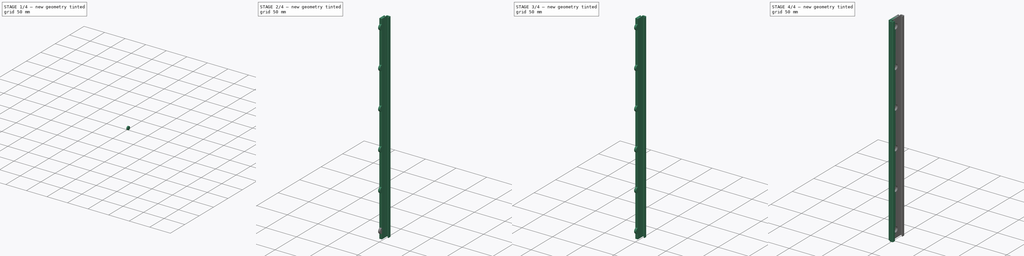
[diagram: build sequence overview — one tinted view per stage of 4, left to right]
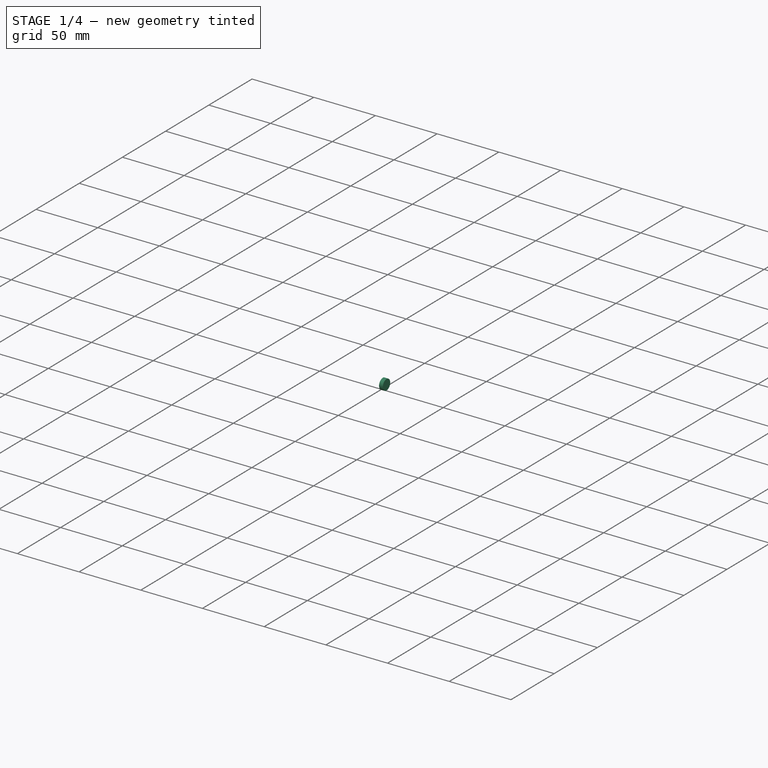
[diagram: stage 1 of 4 — iso view after this stage's code; geometry added in this stage tinted green]
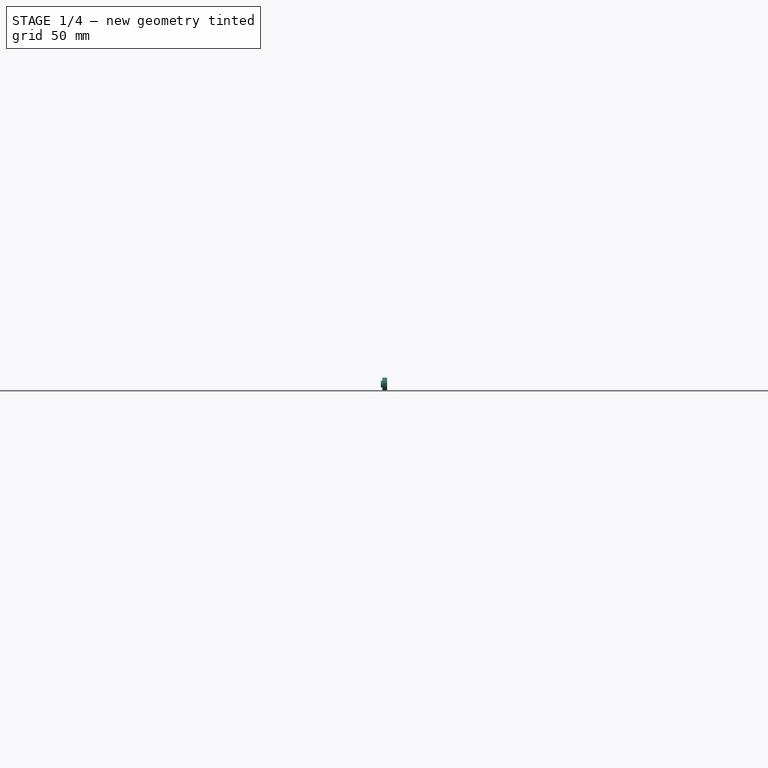
[diagram: stage 1 of 4 — front view after this stage's code; geometry added in this stage tinted green]
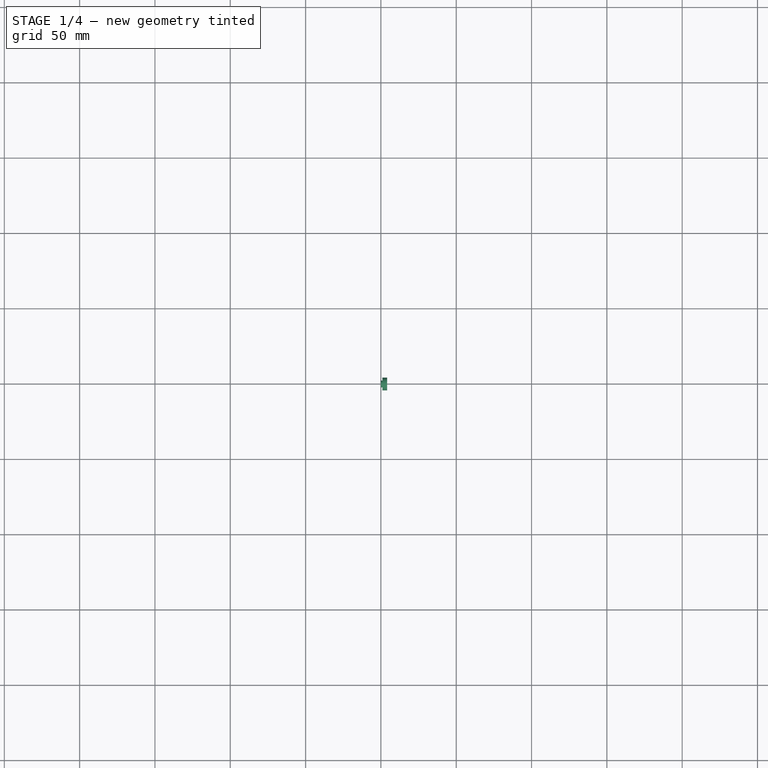
[diagram: stage 1 of 4 — top view after this stage's code; geometry added in this stage tinted green]
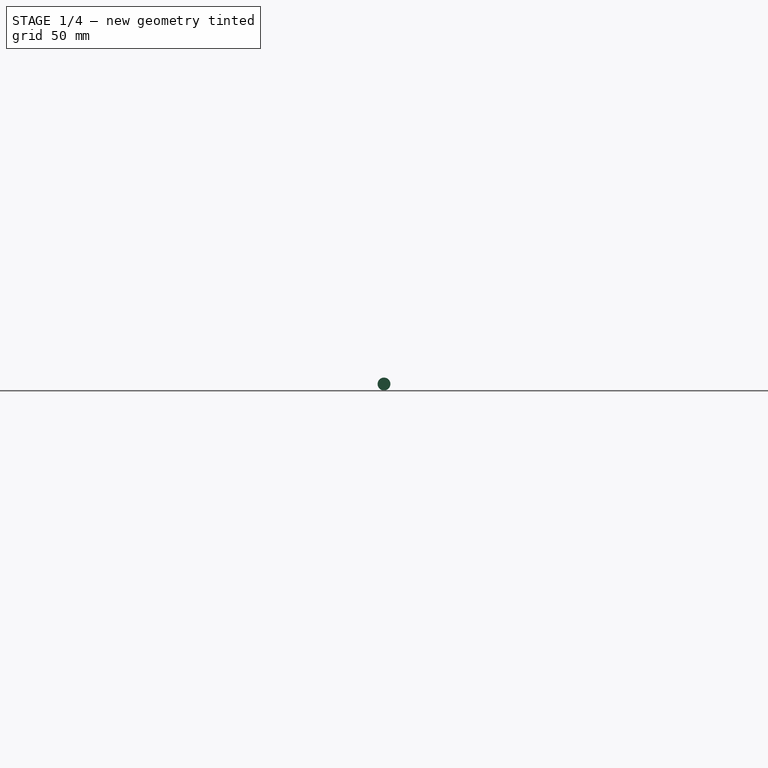
[diagram: stage 1 of 4 — right view after this stage's code; geometry added in this stage tinted green]
FCSTD DOCUMENT  (FreeCAD 0.14R3310 (Git))
Label: 17. PERFIL GUIA NS_01_27_1
License: CC-BY 3.0
LicenseURL: http://creativecommons.org/licenses/by/3.0/
objects: Sketcher::SketchObject×3, PartDesign::Pad×3, PartDesign::Fillet×3, Part::Fuse×2, Part::Mirroring×1, Part::FeaturePython×1, Part::Cut×1
note: 17 computed .brp shape members not serialized (recipe doc carries the construction recipe); baked Part::Feature solids carry a one-line shape summary decoded from their .brp

FEATURE [Sketcher::SketchObject] Sketch001
  Placement = pos=(0,0,0) rot=(0.57735,0.57735,0.57735;2.0944rad)
  sketch-geometry (1):
    g0: Circle CenterX=0 CenterY=12.5 CenterZ=0 NormalX=0 NormalY=0 NormalZ=1 Radius=2.25
  constraints (3):
    c: PointOnObject(g0,g-2)
    c: DistanceY(g-1,g0) = 12.5
    c: Radius(g0) = 2.25
FEATURE [PartDesign::Pad] Pad001
  Length = 1
  Length2 = 100
  Placement = pos=(0,0,0) rot=(0.57735,0.57735,0.57735;2.0944rad)
  Sketch = -> Sketch001
  Type = 0
FEATURE [Sketcher::SketchObject] Sketch002
  Placement = pos=(1,0,0) rot=(0.57735,0.57735,0.57735;2.0944rad)
  Support = -> Pad001 [Face3]
  sketch-geometry (1):
    g0: Circle CenterX=0 CenterY=12.5 CenterZ=0 NormalX=0 NormalY=0 NormalZ=1 Radius=4.25
  constraints (3):
    c: PointOnObject(g0,g-2)
    c: DistanceY(g-1,g0) = 12.5
    c: Radius(g0) = 4.25
FEATURE [PartDesign::Pad] Pad002
  Length = 3.1
  Length2 = 100
  Placement = pos=(0,0,0) rot=(0.57735,0.57735,0.57735;2.0944rad)
  Sketch = -> Sketch002
  Type = 0
FEATURE [Part::Fuse] Fusion001
  Base = -> Pad001
  Tool = -> Pad002
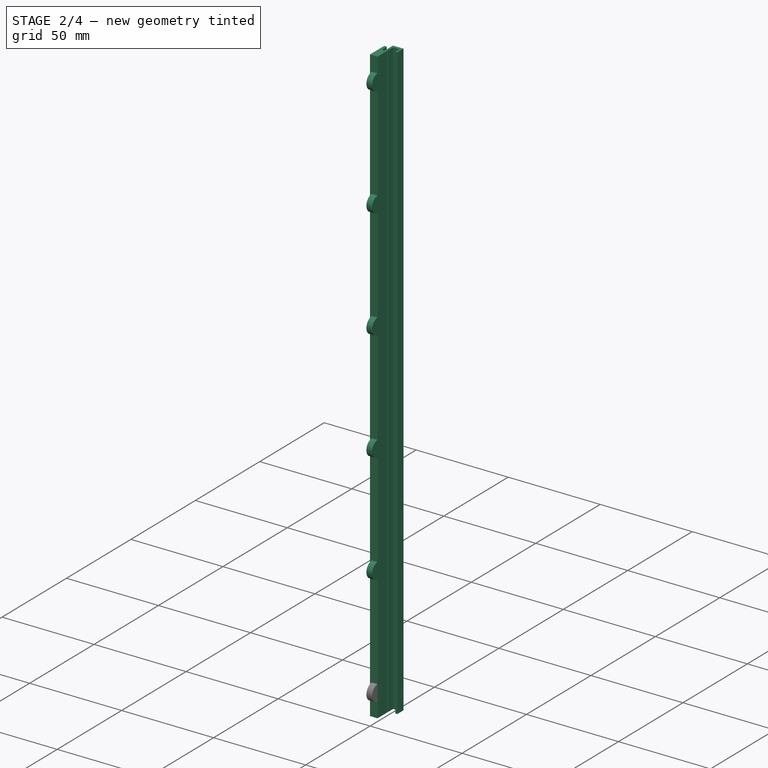
[diagram: stage 2 of 4 — iso view after this stage's code; geometry added in this stage tinted green]
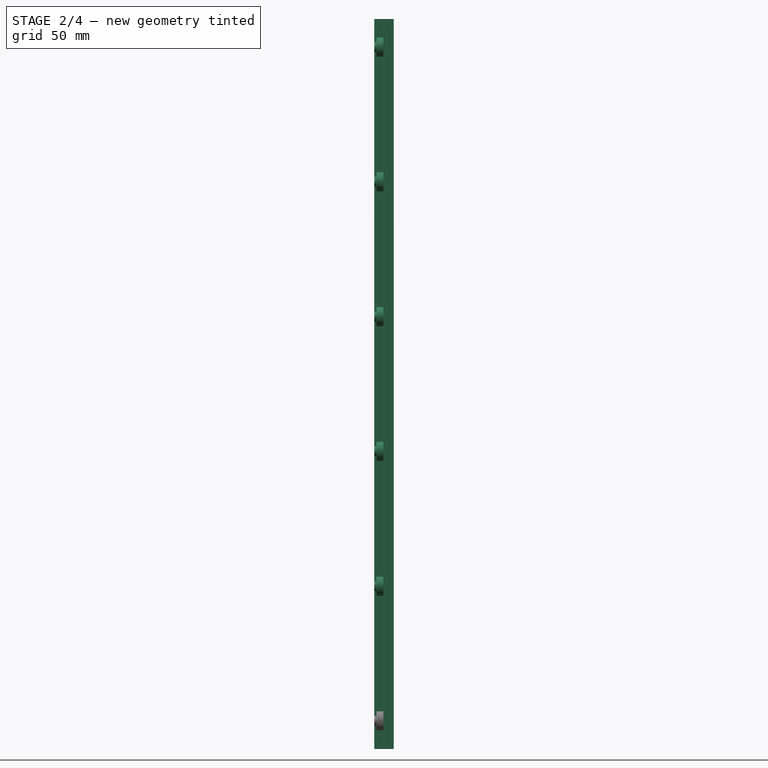
[diagram: stage 2 of 4 — front view after this stage's code; geometry added in this stage tinted green]
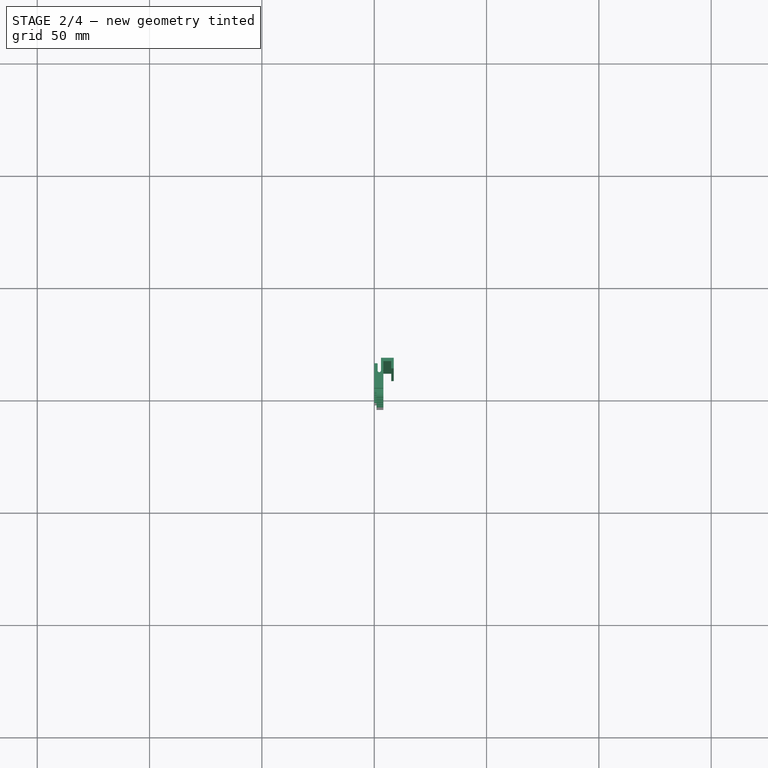
[diagram: stage 2 of 4 — top view after this stage's code; geometry added in this stage tinted green]
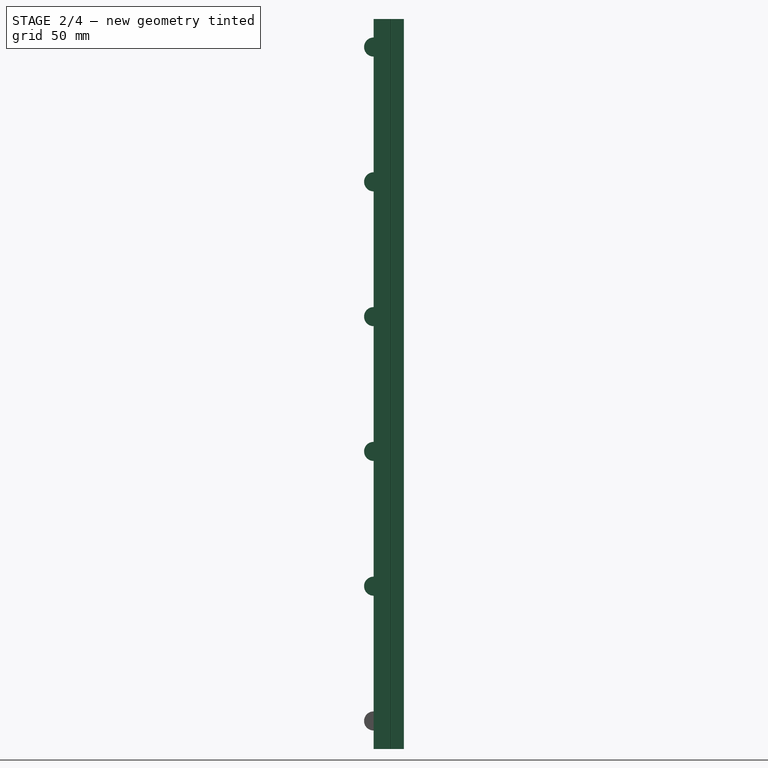
[diagram: stage 2 of 4 — right view after this stage's code; geometry added in this stage tinted green]
FEATURE [Sketcher::SketchObject] Sketch
  sketch-geometry (14):
    g0: LineSegment StartX=0 StartY=0 StartZ=0 EndX=0 EndY=11 EndZ=0
    g1: LineSegment StartX=0 StartY=11 StartZ=0 EndX=1.5 EndY=11 EndZ=0
    g2: ArcOfCircle CenterX=2.25 CenterY=7.8 CenterZ=0 NormalX=0 NormalY=0 NormalZ=1 Radius=0.75 StartAngle=3.14159 EndAngle=6.28319
    g3: LineSegment StartX=1.5 StartY=11 StartZ=0 EndX=1.5 EndY=7.8 EndZ=0
    g4: LineSegment StartX=3 StartY=7.8 StartZ=0 EndX=3 EndY=13.5 EndZ=0
    g5: LineSegment StartX=3 StartY=13.5 StartZ=0 EndX=8.7 EndY=13.5 EndZ=0
    g6: LineSegment StartX=8.7 StartY=13.5 StartZ=0 EndX=8.7 EndY=8.75 EndZ=0
    g7: LineSegment StartX=8.7 StartY=8.75 StartZ=0 EndX=7.6 EndY=8.75 EndZ=0
    g8: LineSegment StartX=7.6 StartY=8.75 StartZ=0 EndX=7.6 EndY=12 EndZ=0
    g9: LineSegment StartX=7.6 StartY=12 StartZ=0 EndX=4.1 EndY=12 EndZ=0
    g10: ArcOfCircle CenterX=4.1 CenterY=7.75 CenterZ=0 NormalX=0 NormalY=0 NormalZ=1 Radius=0.2 StartAngle=1.5708 EndAngle=4.71239
    g11: LineSegment StartX=4.1 StartY=12 StartZ=0 EndX=4.1 EndY=7.95 EndZ=0
    g12: LineSegment StartX=4.1 StartY=7.55 StartZ=0 EndX=4.1 EndY=0 EndZ=0
    g13: LineSegment StartX=4.1 StartY=0 StartZ=0 EndX=0 EndY=0 EndZ=0
  constraints (43):
    c: Coincident(g0,g-1)
    c: PointOnObject(g0,g-2)
    c: Distance(g0) = 11
    c: Horizontal(g1)
    c: Distance(g1) = 1.5
    c: Coincident(g1,g0)
    c: Coincident(g3,g1)
    c: Vertical(g3)
    c: Coincident(g2,g3)
    c: Radius(g2) = 0.75
    c: DistanceY(g-1,g2) = 7.8
    c: Coincident(g4,g2)
    c: Vertical(g4)
    c: Tangent(g2,g3)
    c: Tangent(g4,g2)
    c: Coincident(g5,g4)
    c: Horizontal(g5)
    c: DistanceY(g-1,g4) = 13.5
    c: Distance(g5) = 5.7
    c: Coincident(g6,g5)
    c: Vertical(g6)
    c: Distance(g6) = 4.75
    c: Coincident(g7,g6)
    c: Horizontal(g7)
    c: Distance(g7) = 1.1
    c: Coincident(g8,g7)
    c: Vertical(g8)
    c: Distance(g8) = 3.25
    c: Coincident(g9,g8)
    c: Horizontal(g9)
    c: Distance(g9) = 3.5
    c: DistanceY(g-1,g10) = 7.75
    c: Coincident(g11,g9)
    c: Coincident(g11,g10)
    c: Vertical(g11)
    c: Coincident(g12,g10)
    c: PointOnObject(g12,g-1)
    c: Vertical(g12)
    c: Coincident(g13,g12)
    c: Coincident(g13,g-1)
    c: Radius(g10) = 0.2
    c: Perpendicular(g10,g11)
    c: Perpendicular(g10,g12)
FEATURE [PartDesign::Pad] Pad
  Length = 325
  Length2 = 100
  Sketch = -> Sketch
  Type = 0
FEATURE [PartDesign::Fillet] Fillet
  Base = -> Pad [Edge5]
  Radius = 0.2
FEATURE [Part::FeaturePython] Array  # Draft array (typed FeaturePython)
  Angle = 360
  ArrayType = 0
  Axis = (0,0,1)
  Base = -> Fusion001
  Center = (0,0,0)
  IntervalX = (1,0,0)
  IntervalY = (0,1,0)
  IntervalZ = (0,0,60)
  NumberPolar = 1
  NumberX = 1
  NumberY = 1
  NumberZ = 6
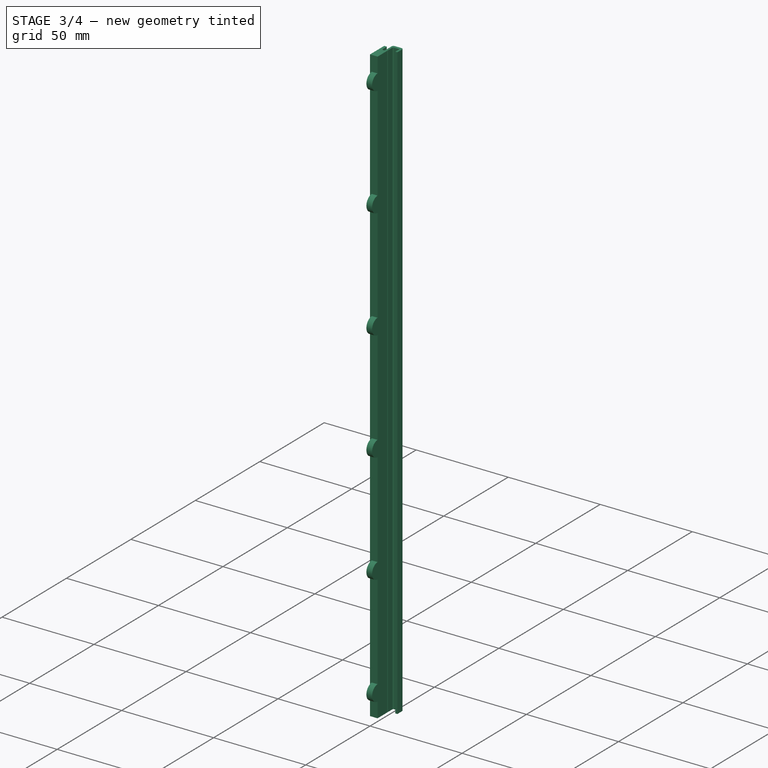
[diagram: stage 3 of 4 — iso view after this stage's code; geometry added in this stage tinted green]
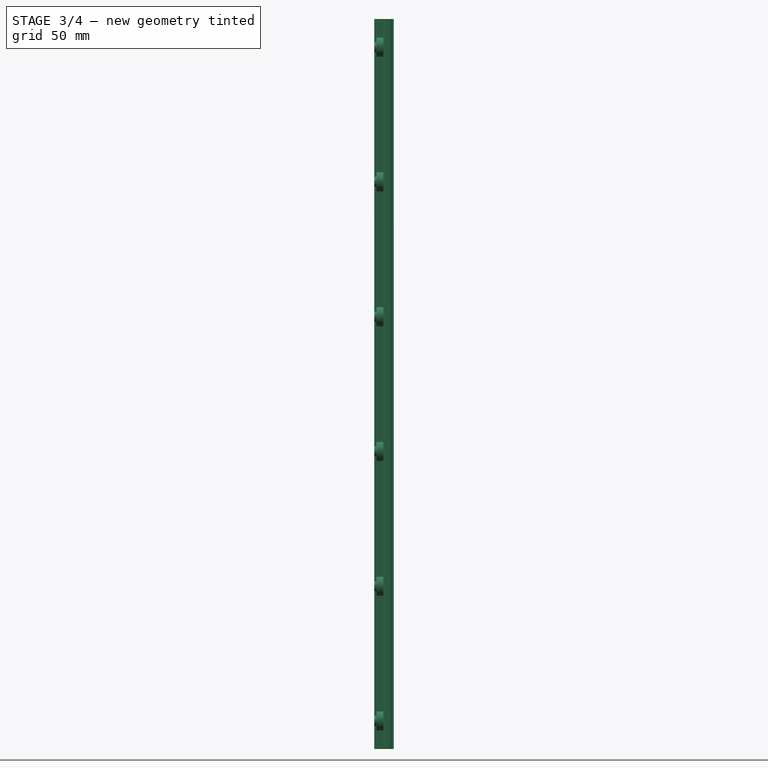
[diagram: stage 3 of 4 — front view after this stage's code; geometry added in this stage tinted green]
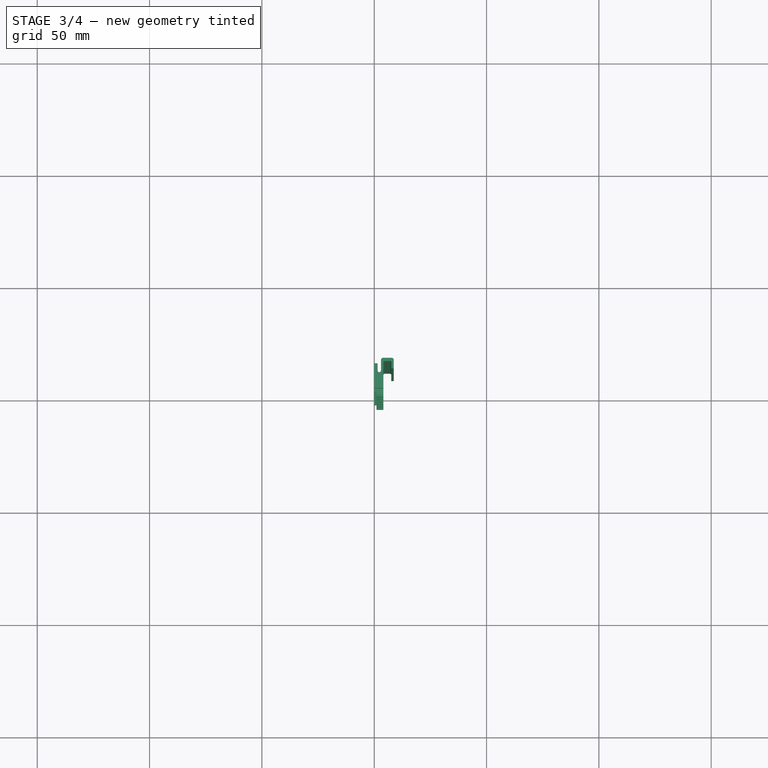
[diagram: stage 3 of 4 — top view after this stage's code; geometry added in this stage tinted green]
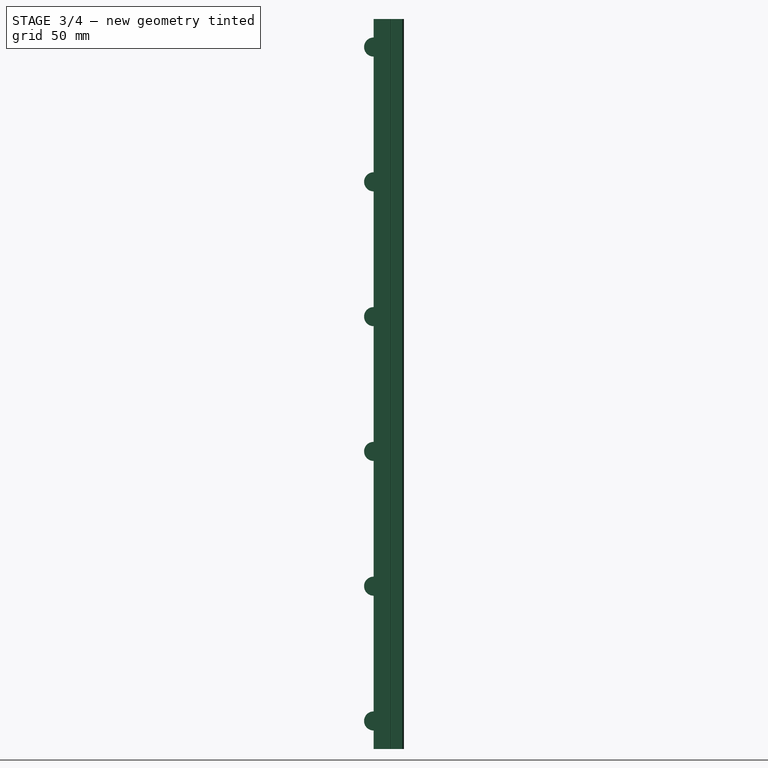
[diagram: stage 3 of 4 — right view after this stage's code; geometry added in this stage tinted green]
FEATURE [PartDesign::Fillet] Fillet001
  Base = -> Fillet [Edge39,Edge41]
  Radius = 1
FEATURE [PartDesign::Fillet] Fillet002
  Base = -> Fillet001 [Edge45,Edge41]
  Radius = 0.5
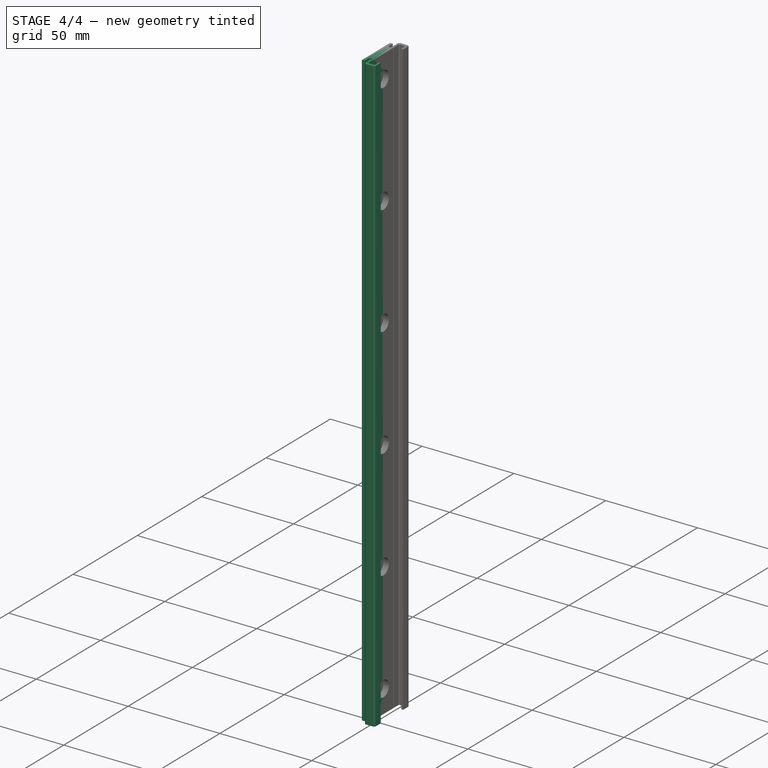
[diagram: stage 4 of 4 — iso view after this stage's code; geometry added in this stage tinted green]
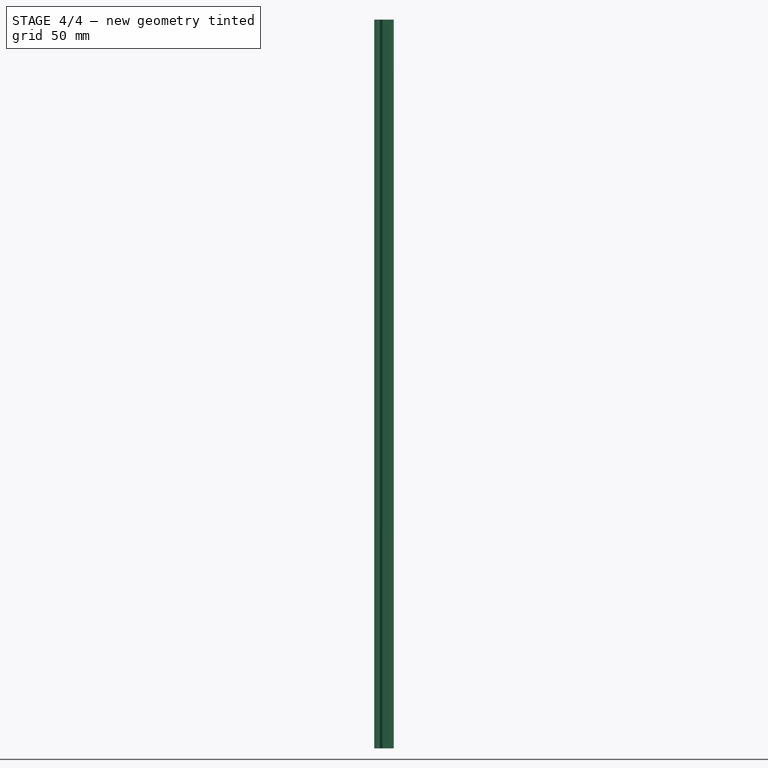
[diagram: stage 4 of 4 — front view after this stage's code; geometry added in this stage tinted green]
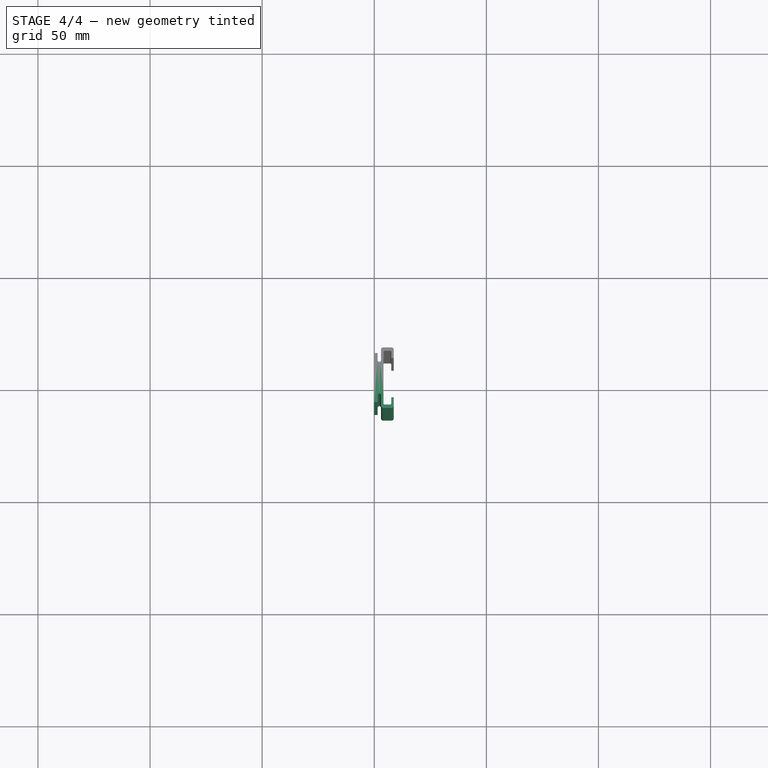
[diagram: stage 4 of 4 — top view after this stage's code; geometry added in this stage tinted green]
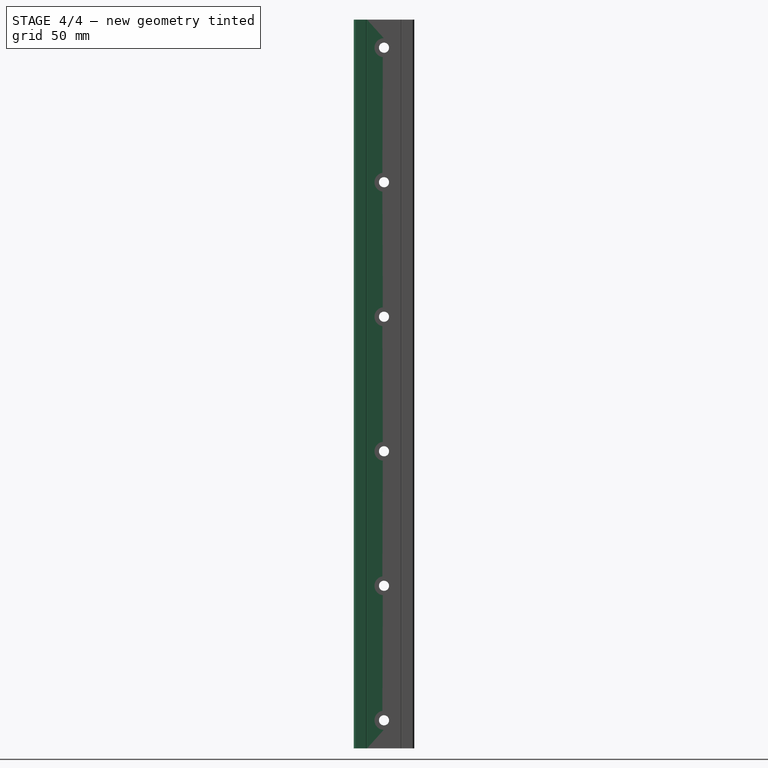
[diagram: stage 4 of 4 — right view after this stage's code; geometry added in this stage tinted green]
FEATURE [Part::Mirroring] Part__Mirroring  label="Fillet002 (Mirror #1)"
  Base = (0,0,0)
  Normal = (0,1,0)
  Source = -> Fillet002
FEATURE [Part::Fuse] Fusion
  Base = -> Fillet002
  Tool = -> Part__Mirroring
FEATURE [Part::Cut] Cut
  Base = -> Fusion
  Tool = -> Array
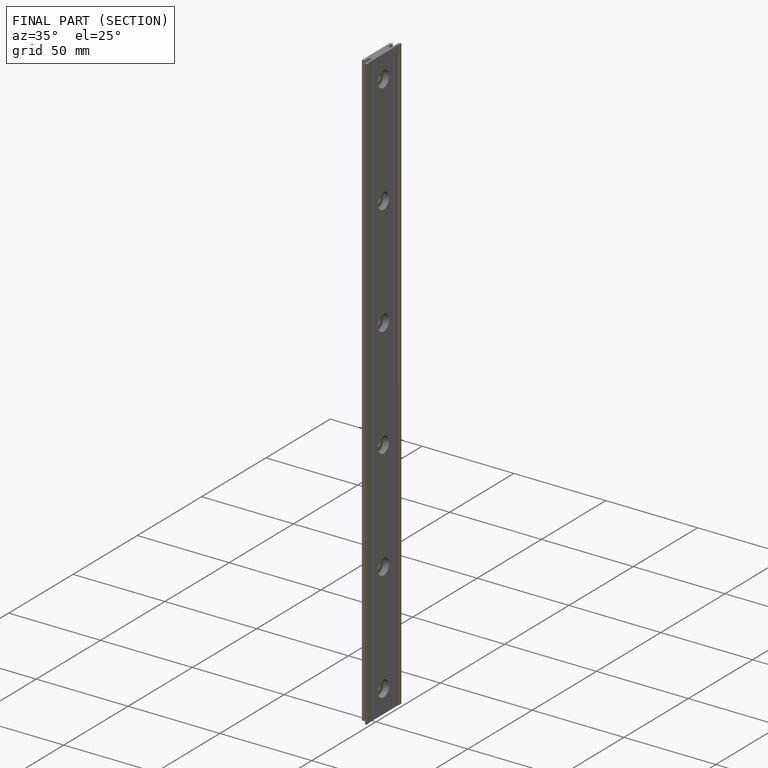
[diagram: finished part — half-section view (interior)]
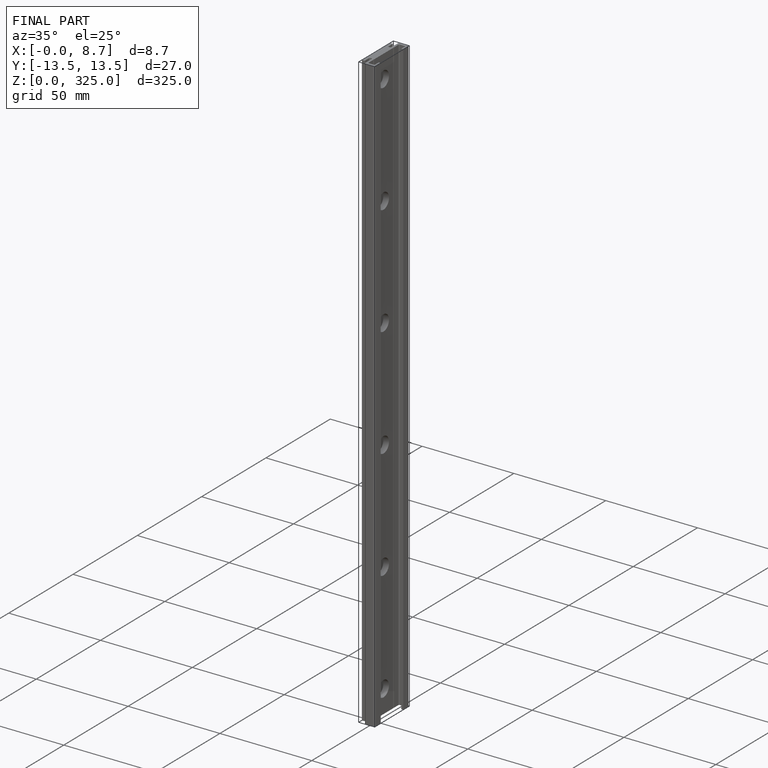
[diagram: finished part — iso view with bounding-box wireframe]
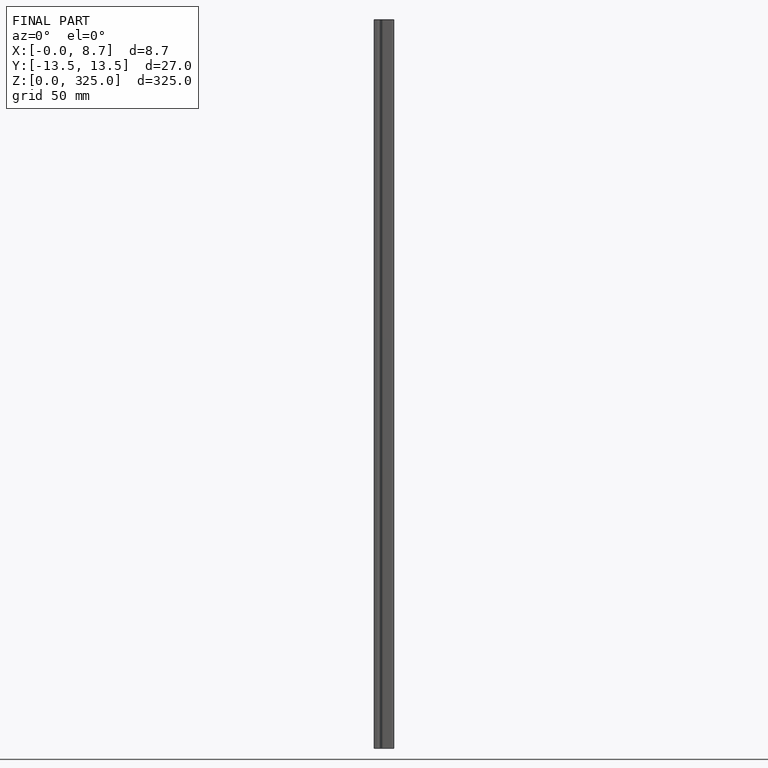
[diagram: finished part — front view with bounding-box wireframe]
